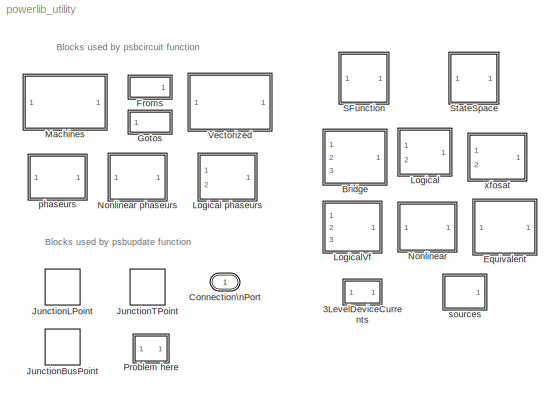
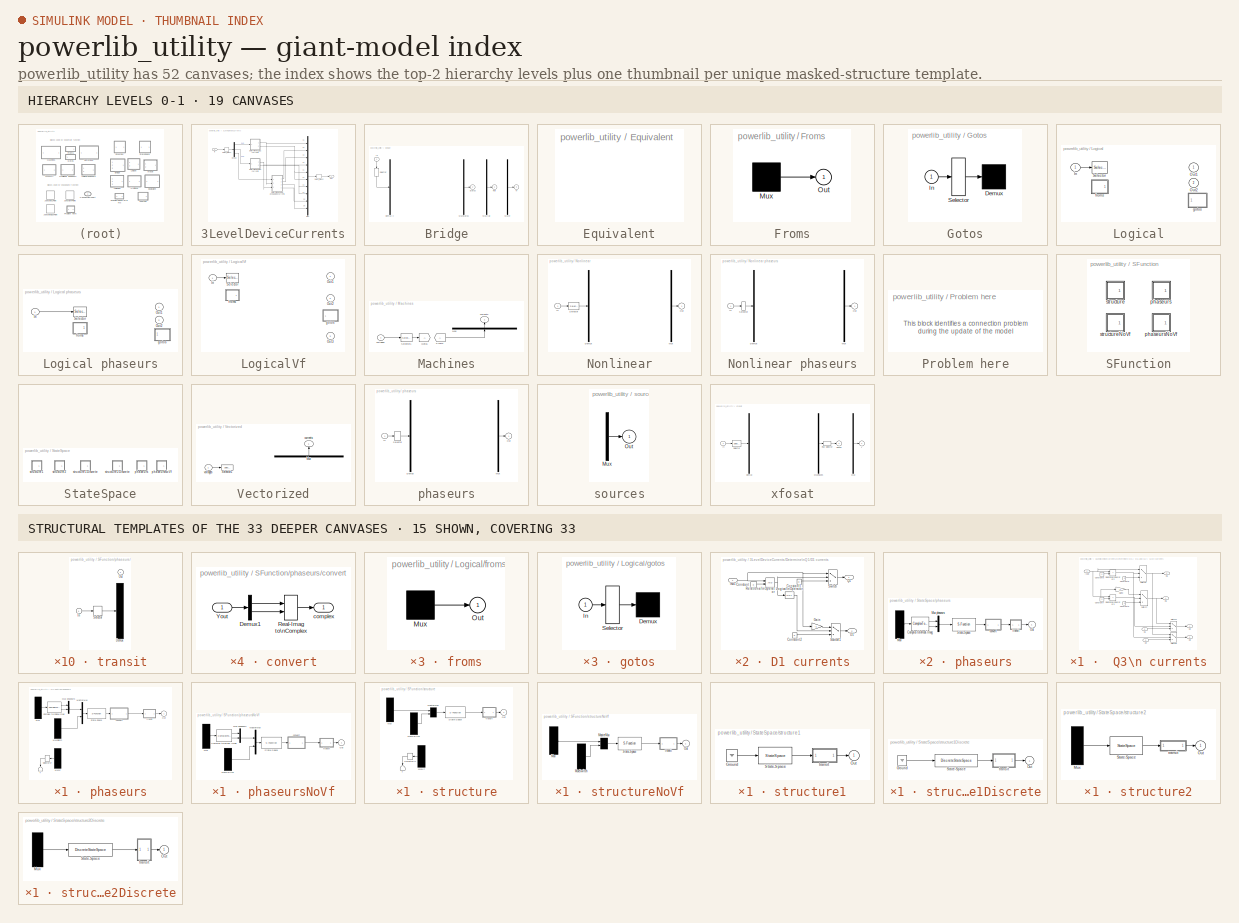
[diagram: thumbnail index - top-2 hierarchy levels (19 canvases) + 15 structural-template representatives of the remaining 33 canvases]
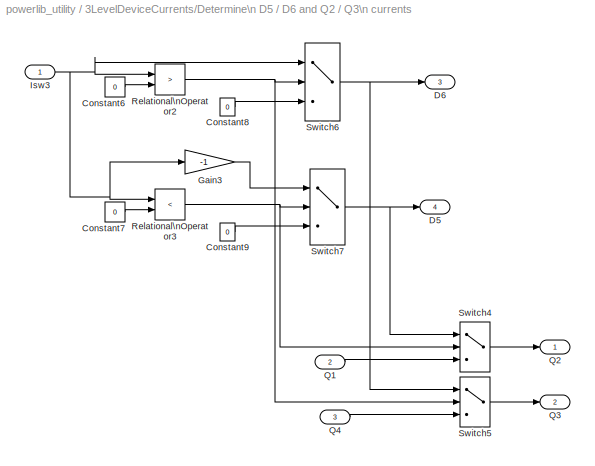
MODEL powerlib_utility
KIND model
BLOCK [SubSystem] 3LevelDeviceCurrents
  MaskEnableString = on
  MaskIconFrame = on
  MaskIconOpaque = on
  MaskIconRotate = none
  MaskIconUnits = autoscale
  MaskInitialization = if nb_arm==1,\n   ImesElements1=[1:3];\n   ImesElements2=[1:10];\nelseif nb_arm==2,\n   ImesElements1=[1 4 2 5 3 6];\n   ImesElements2=[1:2:19 2:2:20];\nelseif nb_arm==3,\n   ImesElements1=[1 4 7 2 5 8 3 6 9];\n   ImesElements2=[1:3:28 2:3:29 3:3:30];\nend
  MaskPromptString = Number of arms:
  MaskStyleString = edit
  MaskToolTipString = on
  MaskTunableValueString = on
  MaskType = Determine device currents
  MaskValueString = 3
  MaskVariables = nb_arm=@1;
  MaskVisibilityString = on
  MinAlgLoopOccurrences = off
  Ports = [1, 1]
  RTWSystemCode = Auto
  TreatAsAtomicUnit = off
BLOCK [Demux] 3LevelDeviceCurrents/Demux
  Outputs = [nb_arm nb_arm nb_arm]
  Ports = [1, 3]
BLOCK [SubSystem] 3LevelDeviceCurrents/Determine\n D5 // D6 and Q2 // Q3\n currents
  MinAlgLoopOccurrences = off
  Ports = [3, 4]
  RTWSystemCode = Auto
  TreatAsAtomicUnit = off
BLOCK [Constant] 3LevelDeviceCurrents/Determine\n D5 // D6 and Q2 // Q3\n currents/Constant6
  Value = 0
BLOCK [Constant] 3LevelDeviceCurrents/Determine\n D5 // D6 and Q2 // Q3\n currents/Constant7
  Value = 0
BLOCK [Constant] 3LevelDeviceCurrents/Determine\n D5 // D6 and Q2 // Q3\n currents/Constant8
  Value = 0
BLOCK [Constant] 3LevelDeviceCurrents/Determine\n D5 // D6 and Q2 // Q3\n currents/Constant9
  Value = 0
BLOCK [Outport] 3LevelDeviceCurrents/Determine\n D5 // D6 and Q2 // Q3\n currents/D5
  IconDisplay = Port number
  Port = 4
BLOCK [Outport] 3LevelDeviceCurrents/Determine\n D5 // D6 and Q2 // Q3\n currents/D6
  IconDisplay = Port number
  Port = 3
BLOCK [Gain] 3LevelDeviceCurrents/Determine\n D5 // D6 and Q2 // Q3\n currents/Gain3
  Gain = -1
BLOCK [Inport] 3LevelDeviceCurrents/Determine\n D5 // D6 and Q2 // Q3\n currents/Isw3
  IconDisplay = Port number
  LatchInput = off
  Port = 1
BLOCK [Inport] 3LevelDeviceCurrents/Determine\n D5 // D6 and Q2 // Q3\n currents/Q1
  IconDisplay = Port number
  LatchInput = off
  Port = 2
BLOCK [Outport] 3LevelDeviceCurrents/Determine\n D5 // D6 and Q2 // Q3\n currents/Q2
  IconDisplay = Port number
BLOCK [Outport] 3LevelDeviceCurrents/Determine\n D5 // D6 and Q2 // Q3\n currents/Q3
  IconDisplay = Port number
  Port = 2
BLOCK [Inport] 3LevelDeviceCurrents/Determine\n D5 // D6 and Q2 // Q3\n currents/Q4
  IconDisplay = Port number
  LatchInput = off
  Port = 3
BLOCK [RelationalOperator] 3LevelDeviceCurrents/Determine\n D5 // D6 and Q2 // Q3\n currents/Relational\nOperator2
  Operator = >
BLOCK [RelationalOperator] 3LevelDeviceCurrents/Determine\n D5 // D6 and Q2 // Q3\n currents/Relational\nOperator3
  Operator = <
BLOCK [Switch] 3LevelDeviceCurrents/Determine\n D5 // D6 and Q2 // Q3\n currents/Switch4
  Threshold = 0.5
BLOCK [Switch] 3LevelDeviceCurrents/Determine\n D5 // D6 and Q2 // Q3\n currents/Switch5
  Threshold = 0.5
BLOCK [Switch] 3LevelDeviceCurrents/Determine\n D5 // D6 and Q2 // Q3\n currents/Switch6
  Threshold = 0.5
BLOCK [Switch] 3LevelDeviceCurrents/Determine\n D5 // D6 and Q2 // Q3\n currents/Switch7
  Threshold = 0.5
BLOCK [SubSystem] 3LevelDeviceCurrents/Determine\nQ1//D1 currents
  MinAlgLoopOccurrences = off
  Ports = [1, 2]
  RTWSystemCode = Auto
  TreatAsAtomicUnit = off
BLOCK [Constant] 3LevelDeviceCurrents/Determine\nQ1//D1 currents/Constant
  Value = 0
BLOCK [Constant] 3LevelDeviceCurrents/Determine\nQ1//D1 currents/Constant1
  Value = 0
BLOCK [Constant] 3LevelDeviceCurrents/Determine\nQ1//D1 currents/Constant2
  Value = 0
BLOCK [Outport] 3LevelDeviceCurrents/Determine\nQ1//D1 currents/D1
  IconDisplay = Port number
  Port = 2
BLOCK [Gain] 3LevelDeviceCurrents/Determine\nQ1//D1 currents/Gain
  Gain = -1
BLOCK [Inport] 3LevelDeviceCurrents/Determine\nQ1//D1 currents/Isw1
  IconDisplay = Port number
  LatchInput = off
  Port = 1
BLOCK [Logic] 3LevelDeviceCurrents/Determine\nQ1//D1 currents/Logical\nOperator
  Operator = NOT
  Ports = [1, 1]
BLOCK [Outport] 3LevelDeviceCurrents/Determine\nQ1//D1 currents/Q1
  IconDisplay = Port number
BLOCK [RelationalOperator] 3LevelDeviceCurrents/Determine\nQ1//D1 currents/Relational\nOperator
BLOCK [Switch] 3LevelDeviceCurrents/Determine\nQ1//D1 currents/Switch
  Threshold = 0.5
BLOCK [Switch] 3LevelDeviceCurrents/Determine\nQ1//D1 currents/Switch1
  Threshold = 0.5
BLOCK [SubSystem] 3LevelDeviceCurrents/Determine\nQ4 // D4 currents
  MinAlgLoopOccurrences = off
  Ports = [1, 2]
  RTWSystemCode = Auto
  TreatAsAtomicUnit = off
BLOCK [Constant] 3LevelDeviceCurrents/Determine\nQ4 // D4 currents/Constant3
  Value = 0
BLOCK [Constant] 3LevelDeviceCurrents/Determine\nQ4 // D4 currents/Constant4
  Value = 0
BLOCK [Constant] 3LevelDeviceCurrents/Determine\nQ4 // D4 currents/Constant5
  Value = 0
BLOCK [Outport] 3LevelDeviceCurrents/Determine\nQ4 // D4 currents/D4
  IconDisplay = Port number
  Port = 2
BLOCK [Gain] 3LevelDeviceCurrents/Determine\nQ4 // D4 currents/Gain1
  Gain = -1
BLOCK [Inport] 3LevelDeviceCurrents/Determine\nQ4 // D4 currents/Isw2
  IconDisplay = Port number
  LatchInput = off
  Port = 1
BLOCK [Logic] 3LevelDeviceCurrents/Determine\nQ4 // D4 currents/Logical\nOperator1
  Operator = NOT
  Ports = [1, 1]
BLOCK [Outport] 3LevelDeviceCurrents/Determine\nQ4 // D4 currents/Q4
  IconDisplay = Port number
BLOCK [RelationalOperator] 3LevelDeviceCurrents/Determine\nQ4 // D4 currents/Relational\nOperator1
BLOCK [Switch] 3LevelDeviceCurrents/Determine\nQ4 // D4 currents/Switch2
  Threshold = 0.5
BLOCK [Switch] 3LevelDeviceCurrents/Determine\nQ4 // D4 currents/Switch3
  Threshold = 0.5
BLOCK [Mux] 3LevelDeviceCurrents/Mux
  DisplayOption = bar
  Inputs = nb_arm*ones(10,1)
  Ports = [10, 1]
BLOCK [Selector] 3LevelDeviceCurrents/Select_Imes1
  Elements = ImesElements1
  InputPortWidth = nb_arm*3
  Ports = [1, 1]
BLOCK [Selector] 3LevelDeviceCurrents/Select_Imes2
  Elements = ImesElements2
  InputPortWidth = nb_arm*10
  Ports = [1, 1]
BLOCK [Inport] 3LevelDeviceCurrents/in
  IconDisplay = Port number
  LatchInput = off
  Port = 1
BLOCK [Outport] 3LevelDeviceCurrents/out
  IconDisplay = Port number
BLOCK [SubSystem] Bridge
  MinAlgLoopOccurrences = off
  Ports = [1, 3]
  RTWSystemCode = Auto
  TreatAsAtomicUnit = off
BLOCK [Demux] Bridge/Demux V
  Outputs = 1
  Ports = [1, 1]
BLOCK [Inport] Bridge/In
  IconDisplay = Port number
  LatchInput = off
  Port = 1
BLOCK [Mux] Bridge/MuxItail
  DisplayOption = bar
  Inputs = 1
  Ports = [1, 1]
BLOCK [Mux] Bridge/MuxStatus
  DisplayOption = bar
  Inputs = 1
  Ports = [1, 1]
BLOCK [Mux] Bridge/MuxVf
  DisplayOption = bar
  Inputs = 1
  Ports = [1, 1]
BLOCK [Selector] Bridge/Selector
  InputPortWidth = 1
  Ports = [1, 1]
BLOCK [Outport] Bridge/Status
  IconDisplay = Port number
  InitialOutput = 0
  Port = 2
BLOCK [Outport] Bridge/Vf
  IconDisplay = Port number
  InitialOutput = 0
  Port = 3
BLOCK [Outport] Bridge/iTail
  IconDisplay = Port number
  InitialOutput = 0
BLOCK [PMIOPort] Connection\nPort
  Port = 1
  Side = Left
  Tag = PMCPort
BLOCK [SubSystem] Equivalent
  MinAlgLoopOccurrences = off
  Ports = []
  RTWSystemCode = Auto
  TreatAsAtomicUnit = off
BLOCK [SubSystem] Froms
  MinAlgLoopOccurrences = off
  Ports = [0, 1]
  RTWSystemCode = Auto
  TreatAsAtomicUnit = off
BLOCK [Mux] Froms/Mux
  Inputs = 1
  Ports = [1, 1]
BLOCK [Outport] Froms/Out
  IconDisplay = Port number
  InitialOutput = 0
BLOCK [SubSystem] Gotos
  MinAlgLoopOccurrences = off
  Ports = [1]
  RTWSystemCode = Auto
  TreatAsAtomicUnit = off
BLOCK [Demux] Gotos/Demux
  Outputs = 1
  Ports = [1, 1]
BLOCK [Inport] Gotos/In
  IconDisplay = Port number
  LatchInput = off
  Port = 1
BLOCK [Selector] Gotos/Selector
  InputPortWidth = 1
  Ports = [1, 1]
BLOCK [PMComponent] JunctionBusPoint
  LConnTagsString = I1|I2
  LeftPortType = p1
  MaskCallbackString = |
  MaskDescription = This block is used  to replace the Bus Bar block from powerlib2. This block was generated by the psbupdate function. With SimPowerSystems, this block is not required. You should consider deleting this block and reconnect the lines together.
  MaskDisplay = color('red');\n\nplot([0,100],[0,100])\n\nplot([0,100],[100,0])\n\n
  MaskEnableString = on,on
  MaskIconFrame = on
  MaskIconOpaque = on
  MaskIconRotate = port
  MaskIconUnits = autoscale
  MaskInitialization = inputtags = cell(1,entrees);\n\nfor i=1:entrees\n\n	inputtags{i} = ['I',num2str(i)];\n\nend\n\noutputtags = cell(1,sorties);\n\nfor i=1:sorties\n\n	outputtags{i} = ['O',num2str(i)];\n\nend\n\nset_param(gcbh,'LConnTags',inputtags);\n\nset_param(gcbh,'RConnTags',outputtags);
  MaskPromptString = inputs|outputs
  MaskSelfModifiable = on
  MaskStyleString = edit,edit
  MaskTabNameString = ,
  MaskToolTipString = on,on
  MaskTunableValueString = on,on
  MaskType = JunctionPoint
  MaskValueString = 2|2
  MaskVarAliasString = ,
  MaskVariables = entrees=@1;sorties=@2;
  MaskVisibilityString = off,off
  PhysicalDomain = powersysdomain
  Ports = [0, 0, 0, 0, 0, 2, 2]
  RConnTagsString = O1|O2
  RightPortType = p1
  Tag = PoWeRsYsTeMbLoCk
BLOCK [PMComponent] JunctionLPoint
  LConnTagsString = 1
  LeftPortType = p1
  MaskDescription = This block is used  to replace the L connector block from powerlib2. This block was generated by the psbupdate function. With SimPowerSystems, this block is not required. You should consider deleting this block and reconnect the lines together.
  MaskDisplay = color('red');\n\nplot([0,100],[0,100])\n\nplot([0,100],[100,0])\n\n
  MaskIconFrame = on
  MaskIconOpaque = on
  MaskIconRotate = port
  MaskIconUnits = autoscale
  MaskSelfModifiable = on
  MaskType = JunctionPoint
  PhysicalDomain = powersysdomain
  Ports = [0, 0, 0, 0, 0, 1, 1]
  RConnTagsString = __newr0
  RightPortType = p1
  Tag = PoWeRsYsTeMbLoCk
BLOCK [PMComponent] JunctionTPoint
  LConnTagsString = 1|2
  LeftPortType = p1
  MaskDescription = This block is used  to replace the T connector block from powerlib2. This block was generated by the psbupdate function. With SimPowerSystems, this block is not required. You should consider deleting this block and reconnect the lines together.
  MaskDisplay = color('red');\n\nplot([0,100],[0,100])\n\nplot([0,100],[100,0])\n\n
  MaskIconFrame = on
  MaskIconOpaque = on
  MaskIconRotate = port
  MaskIconUnits = autoscale
  MaskSelfModifiable = on
  MaskType = JunctionPoint
  PhysicalDomain = powersysdomain
  Ports = [0, 0, 0, 0, 0, 2, 1]
  RConnTagsString = __newr0
  RightPortType = p1
  Tag = PoWeRsYsTeMbLoCk
BLOCK [SubSystem] Logical
  MinAlgLoopOccurrences = off
  Ports = [1, 2]
  RTWSystemCode = Auto
  TreatAsAtomicUnit = off
BLOCK [SubSystem] Logical phaseurs
  MinAlgLoopOccurrences = off
  Ports = [1, 2]
  RTWSystemCode = Auto
  TreatAsAtomicUnit = off
BLOCK [Inport] Logical phaseurs/In
  IconDisplay = Port number
  LatchInput = off
  Port = 1
BLOCK [Outport] Logical phaseurs/Out1
  IconDisplay = Port number
  InitialOutput = 0
BLOCK [Outport] Logical phaseurs/Out2
  IconDisplay = Port number
  InitialOutput = 0
  Port = 2
BLOCK [Selector] Logical phaseurs/Selector
  InputPortWidth = 1
  Ports = [1, 1]
BLOCK [SubSystem] Logical phaseurs/froms
  MinAlgLoopOccurrences = off
  Ports = [0, 1]
  RTWSystemCode = Auto
  TreatAsAtomicUnit = off
BLOCK [Mux] Logical phaseurs/froms/Mux
  Inputs = 1
  Ports = [1, 1]
BLOCK [Outport] Logical phaseurs/froms/Out
  IconDisplay = Port number
  InitialOutput = 0
BLOCK [SubSystem] Logical phaseurs/gotos
  MinAlgLoopOccurrences = off
  Ports = [1]
  RTWSystemCode = Auto
  TreatAsAtomicUnit = off
BLOCK [Demux] Logical phaseurs/gotos/Demux
  Outputs = 1
  Ports = [1, 1]
BLOCK [Inport] Logical phaseurs/gotos/In
  IconDisplay = Port number
  LatchInput = off
  Port = 1
BLOCK [Selector] Logical phaseurs/gotos/Selector
  InputPortWidth = 1
  Ports = [1, 1]
BLOCK [Inport] Logical/In
  IconDisplay = Port number
  LatchInput = off
  Port = 1
BLOCK [Outport] Logical/Out1
  IconDisplay = Port number
  InitialOutput = 0
BLOCK [Outport] Logical/Out2
  IconDisplay = Port number
  InitialOutput = 0
  Port = 2
BLOCK [Selector] Logical/Selector
  InputPortWidth = 1
  Ports = [1, 1]
BLOCK [SubSystem] Logical/froms
  MinAlgLoopOccurrences = off
  Ports = [0, 1]
  RTWSystemCode = Auto
  TreatAsAtomicUnit = off
BLOCK [Mux] Logical/froms/Mux
  Inputs = 1
  Ports = [1, 1]
BLOCK [Outport] Logical/froms/Out
  IconDisplay = Port number
  InitialOutput = 0
BLOCK [SubSystem] Logical/gotos
  MinAlgLoopOccurrences = off
  Ports = [1]
  RTWSystemCode = Auto
  TreatAsAtomicUnit = off
BLOCK [Demux] Logical/gotos/Demux
  Outputs = 1
  Ports = [1, 1]
BLOCK [Inport] Logical/gotos/In
  IconDisplay = Port number
  LatchInput = off
  Port = 1
BLOCK [Selector] Logical/gotos/Selector
  InputPortWidth = 1
  Ports = [1, 1]
BLOCK [SubSystem] LogicalVf
  MinAlgLoopOccurrences = off
  Ports = [1, 3]
  RTWSystemCode = Auto
  TreatAsAtomicUnit = off
BLOCK [Inport] LogicalVf/In
  IconDisplay = Port number
  LatchInput = off
  Port = 1
BLOCK [Outport] LogicalVf/Out1
  IconDisplay = Port number
  InitialOutput = 0
BLOCK [Outport] LogicalVf/Out2
  IconDisplay = Port number
  InitialOutput = 0
  Port = 2
BLOCK [Outport] LogicalVf/Out3
  IconDisplay = Port number
  InitialOutput = 0
  Port = 3
BLOCK [Selector] LogicalVf/Selector
  InputPortWidth = 1
  Ports = [1, 1]
BLOCK [SubSystem] LogicalVf/froms
  MinAlgLoopOccurrences = off
  Ports = [0, 1]
  RTWSystemCode = Auto
  TreatAsAtomicUnit = off
BLOCK [Mux] LogicalVf/froms/Mux
  Inputs = 1
  Ports = [1, 1]
BLOCK [Outport] LogicalVf/froms/Out
  IconDisplay = Port number
  InitialOutput = 0
BLOCK [SubSystem] LogicalVf/gotos
  MinAlgLoopOccurrences = off
  Ports = [1]
  RTWSystemCode = Auto
  TreatAsAtomicUnit = off
BLOCK [Demux] LogicalVf/gotos/Demux
  Outputs = 1
  Ports = [1, 1]
BLOCK [Inport] LogicalVf/gotos/In
  IconDisplay = Port number
  LatchInput = off
  Port = 1
BLOCK [Selector] LogicalVf/gotos/Selector
  InputPortWidth = 1
  Ports = [1, 1]
BLOCK [SubSystem] Machines
  MinAlgLoopOccurrences = off
  Ports = [1, 1]
  RTWSystemCode = Auto
  TreatAsAtomicUnit = off
BLOCK [From] Machines/From1
  CloseFcn = tagdialog Close
  DialogController = Simulink.DDGSource
  GotoTag = A
BLOCK [Goto] Machines/Goto1
  DialogController = Simulink.DDGSource
  GotoTag = A
  TagVisibility = global
BLOCK [Mux] Machines/Mux
  DisplayOption = bar
  Inputs = 1
  Ports = [1, 1]
BLOCK [Selector] Machines/Selector1
  InputPortWidth = 1
  Ports = [1, 1]
BLOCK [Outport] Machines/currents
  IconDisplay = Port number
  InitialOutput = 0
BLOCK [Inport] Machines/voltages
  IconDisplay = Port number
  LatchInput = off
  Port = 1
BLOCK [SubSystem] Nonlinear
  MinAlgLoopOccurrences = off
  Ports = [1, 1]
  RTWSystemCode = Auto
  TreatAsAtomicUnit = off
BLOCK [SubSystem] Nonlinear phaseurs
  MinAlgLoopOccurrences = off
  Ports = [1, 1]
  RTWSystemCode = Auto
  TreatAsAtomicUnit = off
BLOCK [Demux] Nonlinear phaseurs/Demux
  Outputs = 1
  Ports = [1, 1]
BLOCK [Inport] Nonlinear phaseurs/In
  IconDisplay = Port number
  LatchInput = off
  Port = 1
BLOCK [Mux] Nonlinear phaseurs/Mux
  DisplayOption = bar
  Inputs = 1
  Ports = [1, 1]
BLOCK [Outport] Nonlinear phaseurs/Out
  IconDisplay = Port number
  InitialOutput = 0
BLOCK [Selector] Nonlinear phaseurs/Selector
  InputPortWidth = 1
  Ports = [1, 1]
BLOCK [Demux] Nonlinear/Demux
  Outputs = 1
  Ports = [1, 1]
BLOCK [Inport] Nonlinear/In
  IconDisplay = Port number
  LatchInput = off
  Port = 1
BLOCK [Mux] Nonlinear/Mux
  DisplayOption = bar
  Inputs = 1
  Ports = [1, 1]
BLOCK [Outport] Nonlinear/Out
  IconDisplay = Port number
  InitialOutput = 0
BLOCK [Selector] Nonlinear/Selector
  InputPortWidth = 1
  Ports = [1, 1]
BLOCK [SubSystem] Problem here
  MaskDisplay = plot([-1,1,1,-1,-1],[1,1,-1,-1,1])\n
  MaskIconFrame = on
  MaskIconOpaque = on
  MaskIconRotate = none
  MaskIconUnits = autoscale
  MinAlgLoopOccurrences = off
  Ports = []
  RTWSystemCode = Auto
  TreatAsAtomicUnit = off
BLOCK [SubSystem] SFunction
  MinAlgLoopOccurrences = off
  Ports = []
  RTWSystemCode = Auto
  TreatAsAtomicUnit = off
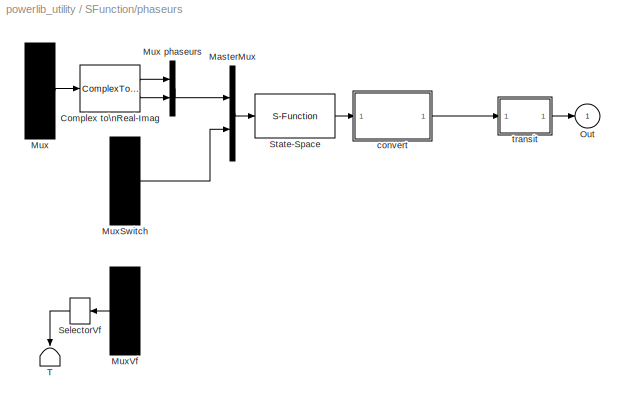
BLOCK [SubSystem] SFunction/phaseurs
  MaskIconFrame = on
  MaskIconOpaque = on
  MaskIconRotate = none
  MaskIconUnits = autoscale
  MaskInitialization = H=0;Rswitch=1;InputsNonZero=1;
  MinAlgLoopOccurrences = off
  Ports = [0, 1]
  RTWSystemCode = Auto
  TreatAsAtomicUnit = off
BLOCK [ComplexToRealImag] SFunction/phaseurs/Complex to\nReal-Imag
  Output = Real and imag
  Ports = [1, 2]
BLOCK [Mux] SFunction/phaseurs/MasterMux
  DisplayOption = bar
  Inputs = 2
  Ports = [2, 1]
BLOCK [Mux] SFunction/phaseurs/Mux
  Inputs = 1
  Ports = [1, 1]
BLOCK [Mux] SFunction/phaseurs/Mux phaseurs
  DisplayOption = bar
  Inputs = 2
  Ports = [2, 1]
BLOCK [Mux] SFunction/phaseurs/MuxSwitch
  Inputs = 1
  Ports = [1, 1]
BLOCK [Mux] SFunction/phaseurs/MuxVf
  Inputs = 1
  Ports = [1, 1]
BLOCK [Outport] SFunction/phaseurs/Out
  IconDisplay = Port number
  InitialOutput = 0
BLOCK [Selector] SFunction/phaseurs/SelectorVf
  InputPortWidth = 1
  Ports = [1, 1]
BLOCK [S-Function] SFunction/phaseurs/State-Space
  FunctionName = sfun_psbdqc
  MaskIconFrame = on
  MaskIconOpaque = on
  MaskIconRotate = none
  MaskIconUnits = autoscale
  Parameters = H, Rswitch,InputsNonZero
  Ports = [1, 1]
BLOCK [Terminator] SFunction/phaseurs/T
BLOCK [SubSystem] SFunction/phaseurs/convert
  MinAlgLoopOccurrences = off
  Ports = [1, 1]
  RTWSystemCode = Auto
  TreatAsAtomicUnit = off
BLOCK [Demux] SFunction/phaseurs/convert/Demux1
  Outputs = 2
  Ports = [1, 2]
BLOCK [RealImagToComplex] SFunction/phaseurs/convert/Real-Imag to\nComplex
  Input = Real and imag
  Ports = [2, 1]
BLOCK [Inport] SFunction/phaseurs/convert/Yout
  IconDisplay = Port number
  LatchInput = off
  Port = 1
BLOCK [Outport] SFunction/phaseurs/convert/complex
  IconDisplay = Port number
BLOCK [SubSystem] SFunction/phaseurs/transit
  MinAlgLoopOccurrences = off
  Ports = [1, 1]
  RTWSystemCode = Auto
  TreatAsAtomicUnit = off
BLOCK [Demux] SFunction/phaseurs/transit/Demux
  Outputs = 1
  Ports = [1, 1]
BLOCK [Inport] SFunction/phaseurs/transit/In
  IconDisplay = Port number
  LatchInput = off
  Port = 1
BLOCK [Outport] SFunction/phaseurs/transit/Out
  IconDisplay = Port number
  InitialOutput = 0
BLOCK [Selector] SFunction/phaseurs/transit/Selector
  InputPortWidth = 1
  Ports = [1, 1]
BLOCK [SubSystem] SFunction/phaseursNoVf
  MaskIconFrame = on
  MaskIconOpaque = on
  MaskIconRotate = none
  MaskIconUnits = autoscale
  MaskInitialization = H=0;Rswitch=1;InputsNonZero=1;
  MinAlgLoopOccurrences = off
  Ports = [0, 1]
  RTWSystemCode = Auto
  TreatAsAtomicUnit = off
BLOCK [ComplexToRealImag] SFunction/phaseursNoVf/Complex to\nReal-Imag
  Output = Real and imag
  Ports = [1, 2]
BLOCK [Mux] SFunction/phaseursNoVf/MasterMux
  DisplayOption = bar
  Inputs = 2
  Ports = [2, 1]
BLOCK [Mux] SFunction/phaseursNoVf/Mux
  Inputs = 1
  Ports = [1, 1]
BLOCK [Mux] SFunction/phaseursNoVf/Mux phaseurs
  DisplayOption = bar
  Inputs = 2
  Ports = [2, 1]
BLOCK [Mux] SFunction/phaseursNoVf/MuxSwitch
  Inputs = 1
  Ports = [1, 1]
BLOCK [Outport] SFunction/phaseursNoVf/Out
  IconDisplay = Port number
  InitialOutput = 0
BLOCK [S-Function] SFunction/phaseursNoVf/State-Space
  FunctionName = sfun_psbdqc
  MaskIconFrame = on
  MaskIconOpaque = on
  MaskIconRotate = none
  MaskIconUnits = autoscale
  Parameters = H, Rswitch,InputsNonZero
  Ports = [1, 1]
BLOCK [SubSystem] SFunction/phaseursNoVf/convert
  MinAlgLoopOccurrences = off
  Ports = [1, 1]
  RTWSystemCode = Auto
  TreatAsAtomicUnit = off
BLOCK [Outport] SFunction/phaseursNoVf/convert/Complex
  IconDisplay = Port number
BLOCK [Demux] SFunction/phaseursNoVf/convert/Demux1
  Outputs = 2
  Ports = [1, 2]
BLOCK [RealImagToComplex] SFunction/phaseursNoVf/convert/Real-Imag to\nComplex
  Input = Real and imag
  Ports = [2, 1]
BLOCK [Inport] SFunction/phaseursNoVf/convert/Yout
  IconDisplay = Port number
  LatchInput = off
  Port = 1
BLOCK [SubSystem] SFunction/phaseursNoVf/transit
  MinAlgLoopOccurrences = off
  Ports = [1, 1]
  RTWSystemCode = Auto
  TreatAsAtomicUnit = off
BLOCK [Demux] SFunction/phaseursNoVf/transit/Demux
  Outputs = 1
  Ports = [1, 1]
BLOCK [Inport] SFunction/phaseursNoVf/transit/In
  IconDisplay = Port number
  LatchInput = off
  Port = 1
BLOCK [Outport] SFunction/phaseursNoVf/transit/Out
  IconDisplay = Port number
  InitialOutput = 0
BLOCK [Selector] SFunction/phaseursNoVf/transit/Selector
  InputPortWidth = 1
  Ports = [1, 1]
BLOCK [SubSystem] SFunction/structure
  MaskIconFrame = on
  MaskIconOpaque = on
  MaskIconRotate = none
  MaskIconUnits = autoscale
  MaskInitialization = A=0;B=0;C=0;D=0;x0=0;Rswitch=1;TypeSwitch=0;Ts=1;YSwitchCurrent=-1;
  MinAlgLoopOccurrences = off
  Ports = [0, 1]
  RTWSystemCode = Auto
  TreatAsAtomicUnit = off
BLOCK [Mux] SFunction/structure/MasterMux
  Inputs = 2
  Ports = [2, 1]
BLOCK [Mux] SFunction/structure/Mux
  Inputs = 1
  Ports = [1, 1]
BLOCK [Mux] SFunction/structure/MuxSwitch
  Inputs = 1
  Ports = [1, 1]
BLOCK [Mux] SFunction/structure/MuxVf
  Inputs = 1
  Ports = [1, 1]
BLOCK [Outport] SFunction/structure/Out
  IconDisplay = Port number
  InitialOutput = 0
BLOCK [Selector] SFunction/structure/SelectorVf
  InputPortWidth = 1
  Ports = [1, 1]
BLOCK [S-Function] SFunction/structure/State-Space
  FunctionName = sfun_psbdiscc
  MaskIconFrame = on
  MaskIconOpaque = on
  MaskIconRotate = none
  MaskIconUnits = autoscale
  Parameters = A,B,C,D,x0,Rswitch,TypeSwitch,Ts,YSwitchCurrent
  Ports = [1, 1]
BLOCK [Terminator] SFunction/structure/T
BLOCK [SubSystem] SFunction/structure/transit
  MinAlgLoopOccurrences = off
  Ports = [1, 1]
  RTWSystemCode = Auto
  TreatAsAtomicUnit = off
BLOCK [Demux] SFunction/structure/transit/Demux
  Outputs = 1
  Ports = [1, 1]
BLOCK [Inport] SFunction/structure/transit/In
  IconDisplay = Port number
  LatchInput = off
  Port = 1
BLOCK [Outport] SFunction/structure/transit/Out
  IconDisplay = Port number
  InitialOutput = 0
BLOCK [Selector] SFunction/structure/transit/Selector
  InputPortWidth = 1
  Ports = [1, 1]
BLOCK [SubSystem] SFunction/structureNoVf
  MaskIconFrame = on
  MaskIconOpaque = on
  MaskIconRotate = none
  MaskIconUnits = autoscale
  MaskInitialization = A=0;B=0;C=0;D=0;x0=0;Rswitch=1;TypeSwitch=0;Ts=1;YSwitchCurrent=-1;
  MinAlgLoopOccurrences = off
  Ports = [0, 1]
  RTWSystemCode = Auto
  TreatAsAtomicUnit = off
BLOCK [Mux] SFunction/structureNoVf/MasterMux
  Inputs = 2
  Ports = [2, 1]
BLOCK [Mux] SFunction/structureNoVf/Mux
  Inputs = 1
  Ports = [1, 1]
BLOCK [Mux] SFunction/structureNoVf/MuxSwitch
  Inputs = 1
  Ports = [1, 1]
BLOCK [Outport] SFunction/structureNoVf/Out
  IconDisplay = Port number
  InitialOutput = 0
BLOCK [S-Function] SFunction/structureNoVf/State-Space
  FunctionName = sfun_psbdiscc
  MaskIconFrame = on
  MaskIconOpaque = on
  MaskIconRotate = none
  MaskIconUnits = autoscale
  Parameters = A,B,C,D,x0,Rswitch,TypeSwitch,Ts,YSwitchCurrent
  Ports = [1, 1]
BLOCK [SubSystem] SFunction/structureNoVf/transit
  MinAlgLoopOccurrences = off
  Ports = [1, 1]
  RTWSystemCode = Auto
  TreatAsAtomicUnit = off
BLOCK [Demux] SFunction/structureNoVf/transit/Demux
  Outputs = 1
  Ports = [1, 1]
BLOCK [Inport] SFunction/structureNoVf/transit/In
  IconDisplay = Port number
  LatchInput = off
  Port = 1
BLOCK [Outport] SFunction/structureNoVf/transit/Out
  IconDisplay = Port number
  InitialOutput = 0
BLOCK [Selector] SFunction/structureNoVf/transit/Selector
  InputPortWidth = 1
  Ports = [1, 1]
BLOCK [SubSystem] StateSpace
  MinAlgLoopOccurrences = off
  Ports = []
  RTWSystemCode = Auto
  TreatAsAtomicUnit = off
BLOCK [SubSystem] StateSpace/phaseurs
  MaskIconFrame = on
  MaskIconOpaque = on
  MaskIconRotate = none
  MaskIconUnits = autoscale
  MaskInitialization = H=0;Rswitch=1;InputsNonZero=1;
  MinAlgLoopOccurrences = off
  Ports = [0, 1]
  RTWSystemCode = Auto
  TreatAsAtomicUnit = off
BLOCK [ComplexToRealImag] StateSpace/phaseurs/Complex to\nReal-Imag
  Output = Real and imag
  Ports = [1, 2]
BLOCK [Mux] StateSpace/phaseurs/Mux
  Inputs = 1
  Ports = [1, 1]
BLOCK [Mux] StateSpace/phaseurs/Mux phaseurs
  DisplayOption = bar
  Inputs = 2
  Ports = [2, 1]
BLOCK [Outport] StateSpace/phaseurs/Out
  IconDisplay = Port number
  InitialOutput = 0
BLOCK [S-Function] StateSpace/phaseurs/State-Space
  FunctionName = sfun_psbdqc
  MaskIconFrame = on
  MaskIconOpaque = on
  MaskIconRotate = none
  MaskIconUnits = autoscale
  Parameters = H, Rswitch,InputsNonZero
  Ports = [1, 1]
BLOCK [SubSystem] StateSpace/phaseurs/convert
  MinAlgLoopOccurrences = off
  Ports = [1, 1]
  RTWSystemCode = Auto
  TreatAsAtomicUnit = off
BLOCK [Demux] StateSpace/phaseurs/convert/Demux1
  Outputs = 2
  Ports = [1, 2]
BLOCK [Inport] StateSpace/phaseurs/convert/In1
  IconDisplay = Port number
  LatchInput = off
  Port = 1
BLOCK [Outport] StateSpace/phaseurs/convert/Out1
  IconDisplay = Port number
BLOCK [RealImagToComplex] StateSpace/phaseurs/convert/Real-Imag to\nComplex
  Input = Real and imag
  Ports = [2, 1]
BLOCK [SubSystem] StateSpace/phaseurs/transit
  MinAlgLoopOccurrences = off
  Ports = [1, 1]
  RTWSystemCode = Auto
  TreatAsAtomicUnit = off
BLOCK [Demux] StateSpace/phaseurs/transit/Demux
  Outputs = 1
  Ports = [1, 1]
BLOCK [Inport] StateSpace/phaseurs/transit/In
  IconDisplay = Port number
  LatchInput = off
  Port = 1
BLOCK [Outport] StateSpace/phaseurs/transit/Out
  IconDisplay = Port number
  InitialOutput = 0
BLOCK [Selector] StateSpace/phaseurs/transit/Selector
  InputPortWidth = 2
  Ports = [1, 1]
BLOCK [SubSystem] StateSpace/phaseursNoVf
  MaskIconFrame = on
  MaskIconOpaque = on
  MaskIconRotate = none
  MaskIconUnits = autoscale
  MaskInitialization = H=0;Rswitch=1;InputsNonZero=1;
  MinAlgLoopOccurrences = off
  Ports = [0, 1]
  RTWSystemCode = Auto
  TreatAsAtomicUnit = off
BLOCK [ComplexToRealImag] StateSpace/phaseursNoVf/Complex to\nReal-Imag
  Output = Real and imag
  Ports = [1, 2]
BLOCK [Mux] StateSpace/phaseursNoVf/Mux
  Inputs = 1
  Ports = [1, 1]
BLOCK [Mux] StateSpace/phaseursNoVf/Mux phaseurs
  DisplayOption = bar
  Inputs = 2
  Ports = [2, 1]
BLOCK [Outport] StateSpace/phaseursNoVf/Out
  IconDisplay = Port number
  InitialOutput = 0
BLOCK [S-Function] StateSpace/phaseursNoVf/State-Space
  FunctionName = sfun_psbdqc
  MaskIconFrame = on
  MaskIconOpaque = on
  MaskIconRotate = none
  MaskIconUnits = autoscale
  Parameters = H, Rswitch,InputsNonZero
  Ports = [1, 1]
BLOCK [SubSystem] StateSpace/phaseursNoVf/convert
  MinAlgLoopOccurrences = off
  Ports = [1, 1]
  RTWSystemCode = Auto
  TreatAsAtomicUnit = off
BLOCK [Demux] StateSpace/phaseursNoVf/convert/Demux1
  Outputs = 2
  Ports = [1, 2]
BLOCK [Inport] StateSpace/phaseursNoVf/convert/In1
  IconDisplay = Port number
  LatchInput = off
  Port = 1
BLOCK [Outport] StateSpace/phaseursNoVf/convert/Out1
  IconDisplay = Port number
BLOCK [RealImagToComplex] StateSpace/phaseursNoVf/convert/Real-Imag to\nComplex
  Input = Real and imag
  Ports = [2, 1]
BLOCK [SubSystem] StateSpace/phaseursNoVf/transit
  MinAlgLoopOccurrences = off
  Ports = [1, 1]
  RTWSystemCode = Auto
  TreatAsAtomicUnit = off
BLOCK [Demux] StateSpace/phaseursNoVf/transit/Demux
  Outputs = 1
  Ports = [1, 1]
BLOCK [Inport] StateSpace/phaseursNoVf/transit/In
  IconDisplay = Port number
  LatchInput = off
  Port = 1
BLOCK [Outport] StateSpace/phaseursNoVf/transit/Out
  IconDisplay = Port number
  InitialOutput = 0
BLOCK [Selector] StateSpace/phaseursNoVf/transit/Selector
  InputPortWidth = 2
  Ports = [1, 1]
BLOCK [SubSystem] StateSpace/structure1
  MaskIconFrame = on
  MaskIconOpaque = on
  MaskIconRotate = none
  MaskIconUnits = autoscale
  MaskInitialization = A=0;B=0;C=0;D=0;x0=0;Rswitch=1;TypeSwitch=0;Ts=1;
  MinAlgLoopOccurrences = off
  Ports = [0, 1]
  RTWSystemCode = Auto
  TreatAsAtomicUnit = off
BLOCK [Ground] StateSpace/structure1/Ground
BLOCK [Outport] StateSpace/structure1/Out
  IconDisplay = Port number
  InitialOutput = 0
BLOCK [StateSpace] StateSpace/structure1/State-Space
  A = A
  B = B
  C = C
  D = D
  MaskIconFrame = on
  MaskIconOpaque = on
  MaskIconRotate = none
  MaskIconUnits = autoscale
  X0 = x0
BLOCK [SubSystem] StateSpace/structure1/transit
  MinAlgLoopOccurrences = off
  Ports = [1, 1]
  RTWSystemCode = Auto
  TreatAsAtomicUnit = off
BLOCK [Demux] StateSpace/structure1/transit/Demux
  Outputs = 1
  Ports = [1, 1]
BLOCK [Inport] StateSpace/structure1/transit/In
  IconDisplay = Port number
  LatchInput = off
  Port = 1
BLOCK [Outport] StateSpace/structure1/transit/Out
  IconDisplay = Port number
  InitialOutput = 0
BLOCK [Selector] StateSpace/structure1/transit/Selector
  InputPortWidth = 1
  Ports = [1, 1]
BLOCK [SubSystem] StateSpace/structure1Discrete
  MaskIconFrame = on
  MaskIconOpaque = on
  MaskIconRotate = none
  MaskIconUnits = autoscale
  MaskInitialization = A=0;B=0;C=0;D=0;x0=0;Rswitch=1;TypeSwitch=0;Ts=1;
  MinAlgLoopOccurrences = off
  Ports = [0, 1]
  RTWSystemCode = Auto
  TreatAsAtomicUnit = off
BLOCK [Ground] StateSpace/structure1Discrete/Ground
BLOCK [Outport] StateSpace/structure1Discrete/Out
  IconDisplay = Port number
  InitialOutput = 0
BLOCK [DiscreteStateSpace] StateSpace/structure1Discrete/State-Space
  A = A
  B = B
  C = C
  D = D
  SampleTime = Ts
  X0 = x0
BLOCK [SubSystem] StateSpace/structure1Discrete/transit
  MinAlgLoopOccurrences = off
  Ports = [1, 1]
  RTWSystemCode = Auto
  TreatAsAtomicUnit = off
BLOCK [Demux] StateSpace/structure1Discrete/transit/Demux
  Outputs = 1
  Ports = [1, 1]
BLOCK [Inport] StateSpace/structure1Discrete/transit/In
  IconDisplay = Port number
  LatchInput = off
  Port = 1
BLOCK [Outport] StateSpace/structure1Discrete/transit/Out
  IconDisplay = Port number
  InitialOutput = 0
BLOCK [Selector] StateSpace/structure1Discrete/transit/Selector
  InputPortWidth = 1
  Ports = [1, 1]
BLOCK [SubSystem] StateSpace/structure2
  MaskIconFrame = on
  MaskIconOpaque = on
  MaskIconRotate = none
  MaskIconUnits = autoscale
  MaskInitialization = A=0;B=0;C=0;D=0;x0=0;Rswitch=1;TypeSwitch=0;Ts=1;
  MinAlgLoopOccurrences = off
  Ports = [0, 1]
  RTWSystemCode = Auto
  TreatAsAtomicUnit = off
BLOCK [Mux] StateSpace/structure2/Mux
  Inputs = 1
  Ports = [1, 1]
BLOCK [Outport] StateSpace/structure2/Out
  IconDisplay = Port number
  InitialOutput = 0
BLOCK [StateSpace] StateSpace/structure2/State-Space
  A = A
  B = B
  C = C
  D = D
  MaskIconFrame = on
  MaskIconOpaque = on
  MaskIconRotate = none
  MaskIconUnits = autoscale
  X0 = x0
BLOCK [SubSystem] StateSpace/structure2/transit
  MinAlgLoopOccurrences = off
  Ports = [1, 1]
  RTWSystemCode = Auto
  TreatAsAtomicUnit = off
BLOCK [Demux] StateSpace/structure2/transit/Demux
  Outputs = 1
  Ports = [1, 1]
BLOCK [Inport] StateSpace/structure2/transit/In
  IconDisplay = Port number
  LatchInput = off
  Port = 1
BLOCK [Outport] StateSpace/structure2/transit/Out
  IconDisplay = Port number
  InitialOutput = 0
BLOCK [Selector] StateSpace/structure2/transit/Selector
  InputPortWidth = 1
  Ports = [1, 1]
BLOCK [SubSystem] StateSpace/structure2Discrete
  MaskIconFrame = on
  MaskIconOpaque = on
  MaskIconRotate = none
  MaskIconUnits = autoscale
  MaskInitialization = A=0;B=0;C=0;D=0;x0=0;Rswitch=1;TypeSwitch=0;Ts=1;
  MinAlgLoopOccurrences = off
  Ports = [0, 1]
  RTWSystemCode = Auto
  TreatAsAtomicUnit = off
BLOCK [Mux] StateSpace/structure2Discrete/Mux
  Inputs = 1
  Ports = [1, 1]
BLOCK [Outport] StateSpace/structure2Discrete/Out
  IconDisplay = Port number
  InitialOutput = 0
BLOCK [DiscreteStateSpace] StateSpace/structure2Discrete/State-Space
  A = A
  B = B
  C = C
  D = D
  SampleTime = Ts
  X0 = x0
BLOCK [SubSystem] StateSpace/structure2Discrete/transit
  MinAlgLoopOccurrences = off
  Ports = [1, 1]
  RTWSystemCode = Auto
  TreatAsAtomicUnit = off
BLOCK [Demux] StateSpace/structure2Discrete/transit/Demux
  Outputs = 1
  Ports = [1, 1]
BLOCK [Inport] StateSpace/structure2Discrete/transit/In
  IconDisplay = Port number
  LatchInput = off
  Port = 1
BLOCK [Outport] StateSpace/structure2Discrete/transit/Out
  IconDisplay = Port number
  InitialOutput = 0
BLOCK [Selector] StateSpace/structure2Discrete/transit/Selector
  InputPortWidth = 1
  Ports = [1, 1]
BLOCK [SubSystem] Vectorized
  MinAlgLoopOccurrences = off
  Ports = [1, 1]
  RTWSystemCode = Auto
  TreatAsAtomicUnit = off
BLOCK [Mux] Vectorized/Mux
  DisplayOption = bar
  Inputs = 1
  Ports = [1, 1]
BLOCK [Selector] Vectorized/Selector1
  InputPortWidth = 1
  Ports = [1, 1]
BLOCK [Outport] Vectorized/currents
  IconDisplay = Port number
  InitialOutput = 0
BLOCK [Inport] Vectorized/voltages
  IconDisplay = Port number
  LatchInput = off
  Port = 1
BLOCK [SubSystem] phaseurs
  MinAlgLoopOccurrences = off
  Ports = [1, 1]
  RTWSystemCode = Auto
  TreatAsAtomicUnit = off
BLOCK [Demux] phaseurs/Demux
  Outputs = 1
  Ports = [1, 1]
BLOCK [Inport] phaseurs/In
  IconDisplay = Port number
  LatchInput = off
  Port = 1
BLOCK [Mux] phaseurs/Mux
  DisplayOption = bar
  Inputs = 1
  Ports = [1, 1]
BLOCK [Outport] phaseurs/Out
  IconDisplay = Port number
  InitialOutput = 0
BLOCK [Selector] phaseurs/Selector
  InputPortWidth = 1
  Ports = [1, 1]
BLOCK [SubSystem] sources
  MinAlgLoopOccurrences = off
  Ports = [0, 1]
  RTWSystemCode = Auto
  TreatAsAtomicUnit = off
BLOCK [Mux] sources/Mux
  DisplayOption = bar
  Inputs = 1
  Ports = [1, 1]
BLOCK [Outport] sources/Out
  IconDisplay = Port number
  InitialOutput = 0
BLOCK [SubSystem] xfosat
  MinAlgLoopOccurrences = off
  Ports = [1, 2]
  RTWSystemCode = Auto
  TreatAsAtomicUnit = off
BLOCK [Demux] xfosat/Demux
  Outputs = 1
  Ports = [1, 1]
BLOCK [Selector] xfosat/Flux Selector
  InputPortWidth = 1
  Ports = [1, 1]
BLOCK [Outport] xfosat/Fluxes
  IconDisplay = Port number
  InitialOutput = 0
  Port = 2
BLOCK [Inport] xfosat/In
  IconDisplay = Port number
  LatchInput = off
  Port = 1
BLOCK [Mux] xfosat/Mux
  DisplayOption = bar
  Inputs = 1
  Ports = [1, 1]
BLOCK [Mux] xfosat/MuxFluxes
  DisplayOption = bar
  Inputs = 1
  Ports = [1, 1]
BLOCK [Selector] xfosat/Selector
  InputPortWidth = 1
  Ports = [1, 1]
BLOCK [Outport] xfosat/i
  IconDisplay = Port number
  InitialOutput = 0
ANNOTATION (root): Blocks used by psbcircuit function
ANNOTATION (root): Blocks used by psbupdate function
ANNOTATION 3LevelDeviceCurrents: D1
ANNOTATION 3LevelDeviceCurrents: D2
ANNOTATION 3LevelDeviceCurrents: D3
ANNOTATION 3LevelDeviceCurrents: D4
ANNOTATION 3LevelDeviceCurrents: D5
ANNOTATION 3LevelDeviceCurrents: D6
ANNOTATION 3LevelDeviceCurrents: Q1
ANNOTATION 3LevelDeviceCurrents: Q2
ANNOTATION 3LevelDeviceCurrents: Q3
ANNOTATION 3LevelDeviceCurrents: Q4
ANNOTATION Problem here: This block identifies a connection problem\nduring the update of the model
LINE 3LevelDeviceCurrents/Demux:1 -> 3LevelDeviceCurrents/Determine\nQ1//D1 currents:1
LINE 3LevelDeviceCurrents/Demux:2 -> 3LevelDeviceCurrents/Determine\nQ4 // D4 currents:1
LINE 3LevelDeviceCurrents/Demux:3 -> 3LevelDeviceCurrents/Determine\n D5 // D6 and Q2 // Q3\n currents:1
LINE 3LevelDeviceCurrents/Determine\n D5 // D6 and Q2 // Q3\n currents/Constant6:1 -> 3LevelDeviceCurrents/Determine\n D5 // D6 and Q2 // Q3\n currents/Relational\nOperator2:2
LINE 3LevelDeviceCurrents/Determine\n D5 // D6 and Q2 // Q3\n currents/Constant7:1 -> 3LevelDeviceCurrents/Determine\n D5 // D6 and Q2 // Q3\n currents/Relational\nOperator3:2
LINE 3LevelDeviceCurrents/Determine\n D5 // D6 and Q2 // Q3\n currents/Constant8:1 -> 3LevelDeviceCurrents/Determine\n D5 // D6 and Q2 // Q3\n currents/Switch6:3
LINE 3LevelDeviceCurrents/Determine\n D5 // D6 and Q2 // Q3\n currents/Constant9:1 -> 3LevelDeviceCurrents/Determine\n D5 // D6 and Q2 // Q3\n currents/Switch7:3
LINE 3LevelDeviceCurrents/Determine\n D5 // D6 and Q2 // Q3\n currents/Gain3:1 -> 3LevelDeviceCurrents/Determine\n D5 // D6 and Q2 // Q3\n currents/Switch7:1
NET 3LevelDeviceCurrents/Determine\n D5 // D6 and Q2 // Q3\n currents/Isw3:1 -> 3LevelDeviceCurrents/Determine\n D5 // D6 and Q2 // Q3\n currents/Gain3:1, 3LevelDeviceCurrents/Determine\n D5 // D6 and Q2 // Q3\n currents/Relational\nOperator2:1, 3LevelDeviceCurrents/Determine\n D5 // D6 and Q2 // Q3\n currents/Relational\nOperator3:1, 3LevelDeviceCurrents/Determine\n D5 // D6 and Q2 // Q3\n currents/Switch6:1
LINE 3LevelDeviceCurrents/Determine\n D5 // D6 and Q2 // Q3\n currents/Q1:1 -> 3LevelDeviceCurrents/Determine\n D5 // D6 and Q2 // Q3\n currents/Switch4:3
LINE 3LevelDeviceCurrents/Determine\n D5 // D6 and Q2 // Q3\n currents/Q4:1 -> 3LevelDeviceCurrents/Determine\n D5 // D6 and Q2 // Q3\n currents/Switch5:3
NET 3LevelDeviceCurrents/Determine\n D5 // D6 and Q2 // Q3\n currents/Relational\nOperator2:1 -> 3LevelDeviceCurrents/Determine\n D5 // D6 and Q2 // Q3\n currents/Switch5:2, 3LevelDeviceCurrents/Determine\n D5 // D6 and Q2 // Q3\n currents/Switch6:2
NET 3LevelDeviceCurrents/Determine\n D5 // D6 and Q2 // Q3\n currents/Relational\nOperator3:1 -> 3LevelDeviceCurrents/Determine\n D5 // D6 and Q2 // Q3\n currents/Switch4:2, 3LevelDeviceCurrents/Determine\n D5 // D6 and Q2 // Q3\n currents/Switch7:2
LINE 3LevelDeviceCurrents/Determine\n D5 // D6 and Q2 // Q3\n currents/Switch4:1 -> 3LevelDeviceCurrents/Determine\n D5 // D6 and Q2 // Q3\n currents/Q2:1
LINE 3LevelDeviceCurrents/Determine\n D5 // D6 and Q2 // Q3\n currents/Switch5:1 -> 3LevelDeviceCurrents/Determine\n D5 // D6 and Q2 // Q3\n currents/Q3:1
NET 3LevelDeviceCurrents/Determine\n D5 // D6 and Q2 // Q3\n currents/Switch6:1 -> 3LevelDeviceCurrents/Determine\n D5 // D6 and Q2 // Q3\n currents/D6:1, 3LevelDeviceCurrents/Determine\n D5 // D6 and Q2 // Q3\n currents/Switch5:1
NET 3LevelDeviceCurrents/Determine\n D5 // D6 and Q2 // Q3\n currents/Switch7:1 -> 3LevelDeviceCurrents/Determine\n D5 // D6 and Q2 // Q3\n currents/D5:1, 3LevelDeviceCurrents/Determine\n D5 // D6 and Q2 // Q3\n currents/Switch4:1
LINE 3LevelDeviceCurrents/Determine\n D5 // D6 and Q2 // Q3\n currents:1 -> 3LevelDeviceCurrents/Mux:2
LINE 3LevelDeviceCurrents/Determine\n D5 // D6 and Q2 // Q3\n currents:2 -> 3LevelDeviceCurrents/Mux:3
LINE 3LevelDeviceCurrents/Determine\n D5 // D6 and Q2 // Q3\n currents:3 -> 3LevelDeviceCurrents/Mux:10
LINE 3LevelDeviceCurrents/Determine\n D5 // D6 and Q2 // Q3\n currents:4 -> 3LevelDeviceCurrents/Mux:9
LINE 3LevelDeviceCurrents/Determine\nQ1//D1 currents/Constant1:1 -> 3LevelDeviceCurrents/Determine\nQ1//D1 currents/Switch:3
LINE 3LevelDeviceCurrents/Determine\nQ1//D1 currents/Constant2:1 -> 3LevelDeviceCurrents/Determine\nQ1//D1 currents/Switch1:3
LINE 3LevelDeviceCurrents/Determine\nQ1//D1 currents/Constant:1 -> 3LevelDeviceCurrents/Determine\nQ1//D1 currents/Relational\nOperator:2
LINE 3LevelDeviceCurrents/Determine\nQ1//D1 currents/Gain:1 -> 3LevelDeviceCurrents/Determine\nQ1//D1 currents/Switch1:1
NET 3LevelDeviceCurrents/Determine\nQ1//D1 currents/Isw1:1 -> 3LevelDeviceCurrents/Determine\nQ1//D1 currents/Gain:1, 3LevelDeviceCurrents/Determine\nQ1//D1 currents/Relational\nOperator:1, 3LevelDeviceCurrents/Determine\nQ1//D1 currents/Switch:1
LINE 3LevelDeviceCurrents/Determine\nQ1//D1 currents/Logical\nOperator:1 -> 3LevelDeviceCurrents/Determine\nQ1//D1 currents/Switch1:2
NET 3LevelDeviceCurrents/Determine\nQ1//D1 currents/Relational\nOperator:1 -> 3LevelDeviceCurrents/Determine\nQ1//D1 currents/Logical\nOperator:1, 3LevelDeviceCurrents/Determine\nQ1//D1 currents/Switch:2
LINE 3LevelDeviceCurrents/Determine\nQ1//D1 currents/Switch1:1 -> 3LevelDeviceCurrents/Determine\nQ1//D1 currents/D1:1
LINE 3LevelDeviceCurrents/Determine\nQ1//D1 currents/Switch:1 -> 3LevelDeviceCurrents/Determine\nQ1//D1 currents/Q1:1
NET 3LevelDeviceCurrents/Determine\nQ1//D1 currents:1 -> 3LevelDeviceCurrents/Determine\n D5 // D6 and Q2 // Q3\n currents:2, 3LevelDeviceCurrents/Mux:1
NET 3LevelDeviceCurrents/Determine\nQ1//D1 currents:2 -> 3LevelDeviceCurrents/Mux:5, 3LevelDeviceCurrents/Mux:6
LINE 3LevelDeviceCurrents/Determine\nQ4 // D4 currents/Constant3:1 -> 3LevelDeviceCurrents/Determine\nQ4 // D4 currents/Relational\nOperator1:2
LINE 3LevelDeviceCurrents/Determine\nQ4 // D4 currents/Constant4:1 -> 3LevelDeviceCurrents/Determine\nQ4 // D4 currents/Switch2:3
LINE 3LevelDeviceCurrents/Determine\nQ4 // D4 currents/Constant5:1 -> 3LevelDeviceCurrents/Determine\nQ4 // D4 currents/Switch3:3
LINE 3LevelDeviceCurrents/Determine\nQ4 // D4 currents/Gain1:1 -> 3LevelDeviceCurrents/Determine\nQ4 // D4 currents/Switch3:1
NET 3LevelDeviceCurrents/Determine\nQ4 // D4 currents/Isw2:1 -> 3LevelDeviceCurrents/Determine\nQ4 // D4 currents/Gain1:1, 3LevelDeviceCurrents/Determine\nQ4 // D4 currents/Relational\nOperator1:1, 3LevelDeviceCurrents/Determine\nQ4 // D4 currents/Switch2:1
LINE 3LevelDeviceCurrents/Determine\nQ4 // D4 currents/Logical\nOperator1:1 -> 3LevelDeviceCurrents/Determine\nQ4 // D4 currents/Switch3:2
NET 3LevelDeviceCurrents/Determine\nQ4 // D4 currents/Relational\nOperator1:1 -> 3LevelDeviceCurrents/Determine\nQ4 // D4 currents/Logical\nOperator1:1, 3LevelDeviceCurrents/Determine\nQ4 // D4 currents/Switch2:2
LINE 3LevelDeviceCurrents/Determine\nQ4 // D4 currents/Switch2:1 -> 3LevelDeviceCurrents/Determine\nQ4 // D4 currents/Q4:1
LINE 3LevelDeviceCurrents/Determine\nQ4 // D4 currents/Switch3:1 -> 3LevelDeviceCurrents/Determine\nQ4 // D4 currents/D4:1
NET 3LevelDeviceCurrents/Determine\nQ4 // D4 currents:1 -> 3LevelDeviceCurrents/Determine\n D5 // D6 and Q2 // Q3\n currents:3, 3LevelDeviceCurrents/Mux:4
NET 3LevelDeviceCurrents/Determine\nQ4 // D4 currents:2 -> 3LevelDeviceCurrents/Mux:7, 3LevelDeviceCurrents/Mux:8
LINE 3LevelDeviceCurrents/Mux:1 -> 3LevelDeviceCurrents/Select_Imes2:1
LINE 3LevelDeviceCurrents/Select_Imes1:1 -> 3LevelDeviceCurrents/Demux:1
LINE 3LevelDeviceCurrents/Select_Imes2:1 -> 3LevelDeviceCurrents/out:1
LINE 3LevelDeviceCurrents/in:1 -> 3LevelDeviceCurrents/Select_Imes1:1
LINE Bridge/In:1 -> Bridge/Selector:1
LINE Bridge/MuxItail:1 -> Bridge/iTail:1
LINE Bridge/MuxStatus:1 -> Bridge/Status:1
LINE Bridge/MuxVf:1 -> Bridge/Vf:1
LINE Bridge/Selector:1 -> Bridge/Demux V:1
LINE Froms/Mux:1 -> Froms/Out:1
LINE Gotos/In:1 -> Gotos/Selector:1
LINE Gotos/Selector:1 -> Gotos/Demux:1
LINE Logical phaseurs/In:1 -> Logical phaseurs/Selector:1
LINE Logical phaseurs/froms/Mux:1 -> Logical phaseurs/froms/Out:1
LINE Logical phaseurs/gotos/In:1 -> Logical phaseurs/gotos/Selector:1
LINE Logical phaseurs/gotos/Selector:1 -> Logical phaseurs/gotos/Demux:1
LINE Logical/In:1 -> Logical/Selector:1
LINE Logical/froms/Mux:1 -> Logical/froms/Out:1
LINE Logical/gotos/In:1 -> Logical/gotos/Selector:1
LINE Logical/gotos/Selector:1 -> Logical/gotos/Demux:1
LINE LogicalVf/In:1 -> LogicalVf/Selector:1
LINE LogicalVf/froms/Mux:1 -> LogicalVf/froms/Out:1
LINE LogicalVf/gotos/In:1 -> LogicalVf/gotos/Selector:1
LINE LogicalVf/gotos/Selector:1 -> LogicalVf/gotos/Demux:1
LINE Machines/From1:1 -> Machines/Mux:1
LINE Machines/Mux:1 -> Machines/currents:1
LINE Machines/Selector1:1 -> Machines/Goto1:1
LINE Machines/voltages:1 -> Machines/Selector1:1
LINE Nonlinear phaseurs/In:1 -> Nonlinear phaseurs/Selector:1
LINE Nonlinear phaseurs/Mux:1 -> Nonlinear phaseurs/Out:1
LINE Nonlinear phaseurs/Selector:1 -> Nonlinear phaseurs/Demux:1
LINE Nonlinear/In:1 -> Nonlinear/Selector:1
LINE Nonlinear/Mux:1 -> Nonlinear/Out:1
LINE Nonlinear/Selector:1 -> Nonlinear/Demux:1
LINE SFunction/phaseurs/Complex to\nReal-Imag:1 -> SFunction/phaseurs/Mux phaseurs:1
LINE SFunction/phaseurs/Complex to\nReal-Imag:2 -> SFunction/phaseurs/Mux phaseurs:2
LINE SFunction/phaseurs/MasterMux:1 -> SFunction/phaseurs/State-Space:1
LINE SFunction/phaseurs/Mux phaseurs:1 -> SFunction/phaseurs/MasterMux:1
LINE SFunction/phaseurs/Mux:1 -> SFunction/phaseurs/Complex to\nReal-Imag:1
LINE SFunction/phaseurs/MuxSwitch:1 -> SFunction/phaseurs/MasterMux:2
LINE SFunction/phaseurs/MuxVf:1 -> SFunction/phaseurs/SelectorVf:1
LINE SFunction/phaseurs/SelectorVf:1 -> SFunction/phaseurs/T:1
LINE SFunction/phaseurs/State-Space:1 -> SFunction/phaseurs/convert:1
LINE SFunction/phaseurs/convert/Demux1:1 -> SFunction/phaseurs/convert/Real-Imag to\nComplex:1
LINE SFunction/phaseurs/convert/Demux1:2 -> SFunction/phaseurs/convert/Real-Imag to\nComplex:2
LINE SFunction/phaseurs/convert/Real-Imag to\nComplex:1 -> SFunction/phaseurs/convert/complex:1
LINE SFunction/phaseurs/convert/Yout:1 -> SFunction/phaseurs/convert/Demux1:1
LINE SFunction/phaseurs/convert:1 -> SFunction/phaseurs/transit:1
LINE SFunction/phaseurs/transit/In:1 -> SFunction/phaseurs/transit/Selector:1
LINE SFunction/phaseurs/transit/Selector:1 -> SFunction/phaseurs/transit/Demux:1
LINE SFunction/phaseurs/transit:1 -> SFunction/phaseurs/Out:1
LINE SFunction/phaseursNoVf/Complex to\nReal-Imag:1 -> SFunction/phaseursNoVf/Mux phaseurs:1
LINE SFunction/phaseursNoVf/Complex to\nReal-Imag:2 -> SFunction/phaseursNoVf/Mux phaseurs:2
LINE SFunction/phaseursNoVf/MasterMux:1 -> SFunction/phaseursNoVf/State-Space:1
LINE SFunction/phaseursNoVf/Mux phaseurs:1 -> SFunction/phaseursNoVf/MasterMux:1
LINE SFunction/phaseursNoVf/Mux:1 -> SFunction/phaseursNoVf/Complex to\nReal-Imag:1
LINE SFunction/phaseursNoVf/MuxSwitch:1 -> SFunction/phaseursNoVf/MasterMux:2
LINE SFunction/phaseursNoVf/State-Space:1 -> SFunction/phaseursNoVf/convert:1
LINE SFunction/phaseursNoVf/convert/Demux1:1 -> SFunction/phaseursNoVf/convert/Real-Imag to\nComplex:1
LINE SFunction/phaseursNoVf/convert/Demux1:2 -> SFunction/phaseursNoVf/convert/Real-Imag to\nComplex:2
LINE SFunction/phaseursNoVf/convert/Real-Imag to\nComplex:1 -> SFunction/phaseursNoVf/convert/Complex:1
LINE SFunction/phaseursNoVf/convert/Yout:1 -> SFunction/phaseursNoVf/convert/Demux1:1
LINE SFunction/phaseursNoVf/convert:1 -> SFunction/phaseursNoVf/transit:1
LINE SFunction/phaseursNoVf/transit/In:1 -> SFunction/phaseursNoVf/transit/Selector:1
LINE SFunction/phaseursNoVf/transit/Selector:1 -> SFunction/phaseursNoVf/transit/Demux:1
LINE SFunction/phaseursNoVf/transit:1 -> SFunction/phaseursNoVf/Out:1
LINE SFunction/structure/MasterMux:1 -> SFunction/structure/State-Space:1
LINE SFunction/structure/Mux:1 -> SFunction/structure/MasterMux:1
LINE SFunction/structure/MuxSwitch:1 -> SFunction/structure/MasterMux:2
LINE SFunction/structure/MuxVf:1 -> SFunction/structure/SelectorVf:1
LINE SFunction/structure/SelectorVf:1 -> SFunction/structure/T:1
LINE SFunction/structure/State-Space:1 -> SFunction/structure/transit:1
LINE SFunction/structure/transit/In:1 -> SFunction/structure/transit/Selector:1
LINE SFunction/structure/transit/Selector:1 -> SFunction/structure/transit/Demux:1
LINE SFunction/structure/transit:1 -> SFunction/structure/Out:1
LINE SFunction/structureNoVf/MasterMux:1 -> SFunction/structureNoVf/State-Space:1
LINE SFunction/structureNoVf/Mux:1 -> SFunction/structureNoVf/MasterMux:1
LINE SFunction/structureNoVf/MuxSwitch:1 -> SFunction/structureNoVf/MasterMux:2
LINE SFunction/structureNoVf/State-Space:1 -> SFunction/structureNoVf/transit:1
LINE SFunction/structureNoVf/transit/In:1 -> SFunction/structureNoVf/transit/Selector:1
LINE SFunction/structureNoVf/transit/Selector:1 -> SFunction/structureNoVf/transit/Demux:1
LINE SFunction/structureNoVf/transit:1 -> SFunction/structureNoVf/Out:1
LINE StateSpace/phaseurs/Complex to\nReal-Imag:1 -> StateSpace/phaseurs/Mux phaseurs:1
LINE StateSpace/phaseurs/Complex to\nReal-Imag:2 -> StateSpace/phaseurs/Mux phaseurs:2
LINE StateSpace/phaseurs/Mux phaseurs:1 -> StateSpace/phaseurs/State-Space:1
LINE StateSpace/phaseurs/Mux:1 -> StateSpace/phaseurs/Complex to\nReal-Imag:1
LINE StateSpace/phaseurs/State-Space:1 -> StateSpace/phaseurs/convert:1
LINE StateSpace/phaseurs/convert/Demux1:1 -> StateSpace/phaseurs/convert/Real-Imag to\nComplex:1
LINE StateSpace/phaseurs/convert/Demux1:2 -> StateSpace/phaseurs/convert/Real-Imag to\nComplex:2
LINE StateSpace/phaseurs/convert/In1:1 -> StateSpace/phaseurs/convert/Demux1:1
LINE StateSpace/phaseurs/convert/Real-Imag to\nComplex:1 -> StateSpace/phaseurs/convert/Out1:1
LINE StateSpace/phaseurs/convert:1 -> StateSpace/phaseurs/transit:1
LINE StateSpace/phaseurs/transit/In:1 -> StateSpace/phaseurs/transit/Selector:1
LINE StateSpace/phaseurs/transit/Selector:1 -> StateSpace/phaseurs/transit/Demux:1
LINE StateSpace/phaseurs/transit:1 -> StateSpace/phaseurs/Out:1
LINE StateSpace/phaseursNoVf/Complex to\nReal-Imag:1 -> StateSpace/phaseursNoVf/Mux phaseurs:1
LINE StateSpace/phaseursNoVf/Complex to\nReal-Imag:2 -> StateSpace/phaseursNoVf/Mux phaseurs:2
LINE StateSpace/phaseursNoVf/Mux phaseurs:1 -> StateSpace/phaseursNoVf/State-Space:1
LINE StateSpace/phaseursNoVf/Mux:1 -> StateSpace/phaseursNoVf/Complex to\nReal-Imag:1
LINE StateSpace/phaseursNoVf/State-Space:1 -> StateSpace/phaseursNoVf/convert:1
LINE StateSpace/phaseursNoVf/convert/Demux1:1 -> StateSpace/phaseursNoVf/convert/Real-Imag to\nComplex:1
LINE StateSpace/phaseursNoVf/convert/Demux1:2 -> StateSpace/phaseursNoVf/convert/Real-Imag to\nComplex:2
LINE StateSpace/phaseursNoVf/convert/In1:1 -> StateSpace/phaseursNoVf/convert/Demux1:1
LINE StateSpace/phaseursNoVf/convert/Real-Imag to\nComplex:1 -> StateSpace/phaseursNoVf/convert/Out1:1
LINE StateSpace/phaseursNoVf/convert:1 -> StateSpace/phaseursNoVf/transit:1
LINE StateSpace/phaseursNoVf/transit/In:1 -> StateSpace/phaseursNoVf/transit/Selector:1
LINE StateSpace/phaseursNoVf/transit/Selector:1 -> StateSpace/phaseursNoVf/transit/Demux:1
LINE StateSpace/phaseursNoVf/transit:1 -> StateSpace/phaseursNoVf/Out:1
LINE StateSpace/structure1/Ground:1 -> StateSpace/structure1/State-Space:1
LINE StateSpace/structure1/State-Space:1 -> StateSpace/structure1/transit:1
LINE StateSpace/structure1/transit/In:1 -> StateSpace/structure1/transit/Selector:1
LINE StateSpace/structure1/transit/Selector:1 -> StateSpace/structure1/transit/Demux:1
LINE StateSpace/structure1/transit:1 -> StateSpace/structure1/Out:1
LINE StateSpace/structure1Discrete/Ground:1 -> StateSpace/structure1Discrete/State-Space:1
LINE StateSpace/structure1Discrete/State-Space:1 -> StateSpace/structure1Discrete/transit:1
LINE StateSpace/structure1Discrete/transit/In:1 -> StateSpace/structure1Discrete/transit/Selector:1
LINE StateSpace/structure1Discrete/transit/Selector:1 -> StateSpace/structure1Discrete/transit/Demux:1
LINE StateSpace/structure1Discrete/transit:1 -> StateSpace/structure1Discrete/Out:1
LINE StateSpace/structure2/Mux:1 -> StateSpace/structure2/State-Space:1
LINE StateSpace/structure2/State-Space:1 -> StateSpace/structure2/transit:1
LINE StateSpace/structure2/transit/In:1 -> StateSpace/structure2/transit/Selector:1
LINE StateSpace/structure2/transit/Selector:1 -> StateSpace/structure2/transit/Demux:1
LINE StateSpace/structure2/transit:1 -> StateSpace/structure2/Out:1
LINE StateSpace/structure2Discrete/Mux:1 -> StateSpace/structure2Discrete/State-Space:1
LINE StateSpace/structure2Discrete/State-Space:1 -> StateSpace/structure2Discrete/transit:1
LINE StateSpace/structure2Discrete/transit/In:1 -> StateSpace/structure2Discrete/transit/Selector:1
LINE StateSpace/structure2Discrete/transit/Selector:1 -> StateSpace/structure2Discrete/transit/Demux:1
LINE StateSpace/structure2Discrete/transit:1 -> StateSpace/structure2Discrete/Out:1
LINE Vectorized/Mux:1 -> Vectorized/currents:1
LINE Vectorized/voltages:1 -> Vectorized/Selector1:1
LINE phaseurs/In:1 -> phaseurs/Selector:1
LINE phaseurs/Mux:1 -> phaseurs/Out:1
LINE phaseurs/Selector:1 -> phaseurs/Demux:1
LINE sources/Mux:1 -> sources/Out:1
LINE xfosat/Flux Selector:1 -> xfosat/Fluxes:1
LINE xfosat/In:1 -> xfosat/Selector:1
LINE xfosat/Mux:1 -> xfosat/i:1
LINE xfosat/MuxFluxes:1 -> xfosat/Flux Selector:1
LINE xfosat/Selector:1 -> xfosat/Demux:1
note: NET lines group one-source signal fan-out (src -> all destinations, sorted); 1:1 wires keep LINE
